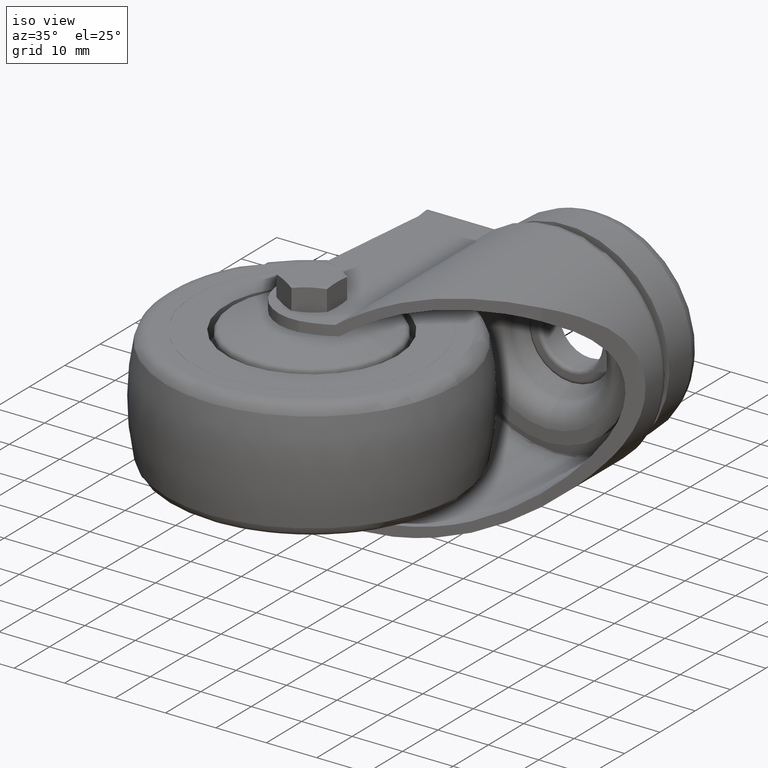
[diagram: clean part render]
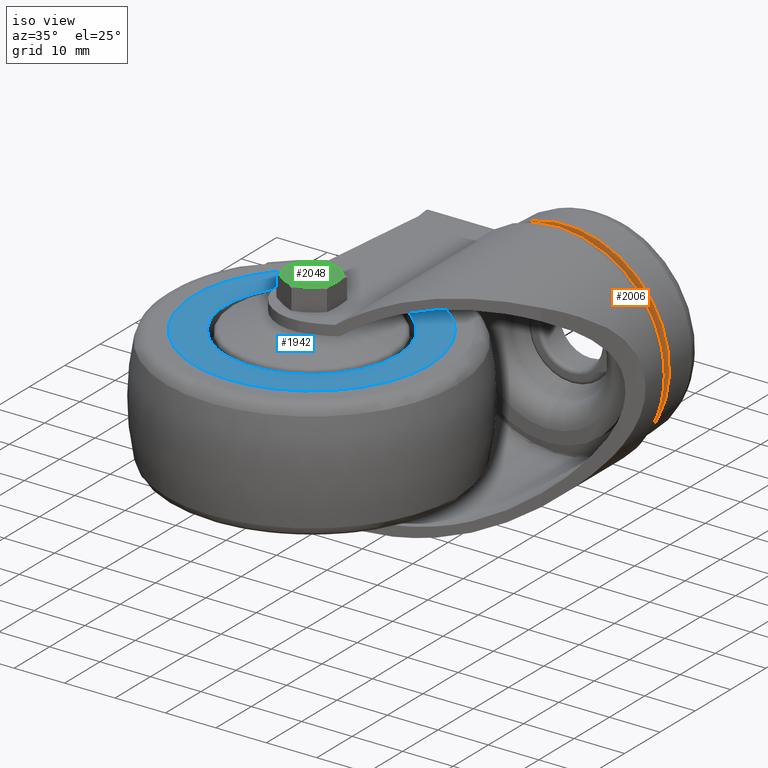
[diagram: same view with three faces highlighted in distinct colors, each labeled with its STEP entity id]
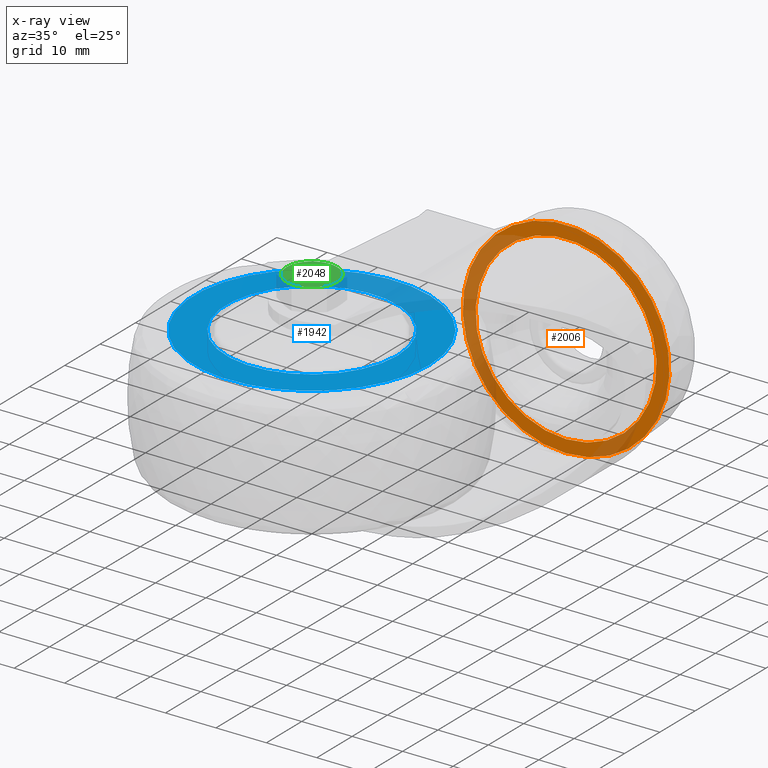
[diagram: x-ray of the same camera — body ghosted, the three highlighted faces saturated]
A machine part, iso view with three faces highlighted in distinct colors.
The next image is the same camera in x-ray (body ghosted, the three faces saturated) — at least one of them is partly hidden behind the body in this view.
Their STEP definitions:

[orange] entity #2006 — the highlighted planar face has unit normal (0, -1, 0).
#304=PLANE('',#2238);
#404=FACE_BOUND('',#708,.T.);
#511=FACE_OUTER_BOUND('',#707,.T.);
#707=EDGE_LOOP('',(#1633));
#708=EDGE_LOOP('',(#1634));
#868=CIRCLE('',#2226,17.95);
#874=CIRCLE('',#2239,20.5);
#1029=VERTEX_POINT('',#3508);
#1035=VERTEX_POINT('',#3527);
#1243=EDGE_CURVE('',#1029,#1029,#868,.T.);
#1249=EDGE_CURVE('',#1035,#1035,#874,.T.);
#1633=ORIENTED_EDGE('',*,*,#1249,.T.);
#1634=ORIENTED_EDGE('',*,*,#1243,.F.);
#2006=ADVANCED_FACE('',(#511,#404),#304,.T.);
#2226=AXIS2_PLACEMENT_3D('',#3509,#2699,#2700);
#2238=AXIS2_PLACEMENT_3D('',#3526,#2723,#2724);
#2239=AXIS2_PLACEMENT_3D('',#3528,#2725,#2726);
#2699=DIRECTION('center_axis',(0.,-1.,0.));
#2700=DIRECTION('ref_axis',(0.,0.,-1.));
#2723=DIRECTION('center_axis',(0.,-1.,0.));
#2724=DIRECTION('ref_axis',(0.,0.,-1.));
#2725=DIRECTION('center_axis',(0.,-1.,0.));
#2726=DIRECTION('ref_axis',(0.,0.,-1.));
#3508=CARTESIAN_POINT('',(21.,42.,-17.95));
#3509=CARTESIAN_POINT('Origin',(21.,42.,0.));
#3526=CARTESIAN_POINT('Origin',(38.95,42.,0.));
#3527=CARTESIAN_POINT('',(21.,42.,-20.5));
#3528=CARTESIAN_POINT('Origin',(21.,42.,0.));

[blue] entity #1942 — the highlighted planar face has unit normal (0, 0, 1).
#281=PLANE('',#2107);
#365=FACE_BOUND('',#605,.T.);
#447=FACE_OUTER_BOUND('',#604,.T.);
#604=EDGE_LOOP('',(#1385));
#605=EDGE_LOOP('',(#1386));
#819=CIRCLE('',#2106,17.0016);
#820=CIRCLE('',#2108,23.3515);
#938=VERTEX_POINT('',#3038);
#939=VERTEX_POINT('',#3041);
#1123=EDGE_CURVE('',#938,#938,#819,.T.);
#1124=EDGE_CURVE('',#939,#939,#820,.T.);
#1385=ORIENTED_EDGE('',*,*,#1124,.T.);
#1386=ORIENTED_EDGE('',*,*,#1123,.F.);
#1942=ADVANCED_FACE('',(#447,#365),#281,.T.);
#2106=AXIS2_PLACEMENT_3D('',#3039,#2421,#2422);
#2107=AXIS2_PLACEMENT_3D('',#3040,#2423,#2424);
#2108=AXIS2_PLACEMENT_3D('',#3042,#2425,#2426);
#2421=DIRECTION('center_axis',(1.,0.,0.));
#2422=DIRECTION('ref_axis',(0.,0.,-1.));
#2423=DIRECTION('center_axis',(1.,0.,0.));
#2424=DIRECTION('ref_axis',(0.,0.,-1.));
#2425=DIRECTION('center_axis',(1.,0.,0.));
#2426=DIRECTION('ref_axis',(0.,0.,-1.));
#3038=CARTESIAN_POINT('',(26.,0.,-17.0016));
#3039=CARTESIAN_POINT('Origin',(26.,0.,0.));
#3040=CARTESIAN_POINT('Origin',(26.,17.0016,0.));
#3041=CARTESIAN_POINT('',(26.,0.,-23.3515));
#3042=CARTESIAN_POINT('Origin',(26.,0.,0.));

[green] entity #2048 — the highlighted planar face has unit normal (0, 0, -1).
#318=PLANE('',#2317);
#553=FACE_OUTER_BOUND('',#772,.T.);
#772=EDGE_LOOP('',(#1764,#1765,#1766,#1767,#1768,#1769));
#907=CIRCLE('',#2318,5.);
#908=CIRCLE('',#2319,5.);
#909=CIRCLE('',#2320,5.);
#910=CIRCLE('',#2321,5.);
#911=CIRCLE('',#2322,5.);
#912=CIRCLE('',#2323,5.);
#1082=VERTEX_POINT('',#3737);
#1083=VERTEX_POINT('',#3738);
#1084=VERTEX_POINT('',#3740);
#1085=VERTEX_POINT('',#3742);
#1086=VERTEX_POINT('',#3744);
#1087=VERTEX_POINT('',#3746);
#1314=EDGE_CURVE('',#1082,#1083,#907,.T.);
#1315=EDGE_CURVE('',#1084,#1082,#908,.T.);
#1316=EDGE_CURVE('',#1085,#1084,#909,.T.);
#1317=EDGE_CURVE('',#1086,#1085,#910,.T.);
#1318=EDGE_CURVE('',#1087,#1086,#911,.T.);
#1319=EDGE_CURVE('',#1083,#1087,#912,.T.);
#1764=ORIENTED_EDGE('',*,*,#1314,.F.);
#1765=ORIENTED_EDGE('',*,*,#1315,.F.);
#1766=ORIENTED_EDGE('',*,*,#1316,.F.);
#1767=ORIENTED_EDGE('',*,*,#1317,.F.);
#1768=ORIENTED_EDGE('',*,*,#1318,.F.);
#1769=ORIENTED_EDGE('',*,*,#1319,.F.);
#2048=ADVANCED_FACE('',(#553),#318,.F.);
#2317=AXIS2_PLACEMENT_3D('',#3736,#2887,#2888);
#2318=AXIS2_PLACEMENT_3D('',#3739,#2889,#2890);
#2319=AXIS2_PLACEMENT_3D('',#3741,#2891,#2892);
#2320=AXIS2_PLACEMENT_3D('',#3743,#2893,#2894);
#2321=AXIS2_PLACEMENT_3D('',#3745,#2895,#2896);
#2322=AXIS2_PLACEMENT_3D('',#3747,#2897,#2898);
#2323=AXIS2_PLACEMENT_3D('',#3748,#2899,#2900);
#2887=DIRECTION('center_axis',(1.,0.,0.));
#2888=DIRECTION('ref_axis',(0.,0.,-1.));
#2889=DIRECTION('center_axis',(1.,0.,0.));
#2890=DIRECTION('ref_axis',(0.,0.,-1.));
#2891=DIRECTION('center_axis',(1.,0.,0.));
#2892=DIRECTION('ref_axis',(0.,0.,-1.));
#2893=DIRECTION('center_axis',(1.,0.,0.));
#2894=DIRECTION('ref_axis',(0.,0.,-1.));
#2895=DIRECTION('center_axis',(1.,0.,0.));
#2896=DIRECTION('ref_axis',(0.,0.,-1.));
#2897=DIRECTION('center_axis',(1.,0.,0.));
#2898=DIRECTION('ref_axis',(0.,0.,-1.));
#2899=DIRECTION('center_axis',(1.,0.,0.));
#2900=DIRECTION('ref_axis',(0.,0.,-1.));
#3736=CARTESIAN_POINT('Origin',(-6.6,0.,0.));
#3737=CARTESIAN_POINT('',(-6.6,4.33012701892219,-2.5));
#3738=CARTESIAN_POINT('',(-6.6,4.33012701892219,2.5));
#3739=CARTESIAN_POINT('Origin',(-6.6,0.,0.));
#3740=CARTESIAN_POINT('',(-6.6,1.02002870488698E-22,-5.));
#3741=CARTESIAN_POINT('Origin',(-6.6,0.,0.));
#3742=CARTESIAN_POINT('',(-6.6,-4.33012701892219,-2.5));
#3743=CARTESIAN_POINT('Origin',(-6.6,0.,0.));
#3744=CARTESIAN_POINT('',(-6.6,-4.33012701892219,2.5));
#3745=CARTESIAN_POINT('Origin',(-6.6,0.,0.));
#3746=CARTESIAN_POINT('',(-6.6,0.,5.));
#3747=CARTESIAN_POINT('Origin',(-6.6,0.,0.));
#3748=CARTESIAN_POINT('Origin',(-6.6,0.,0.));